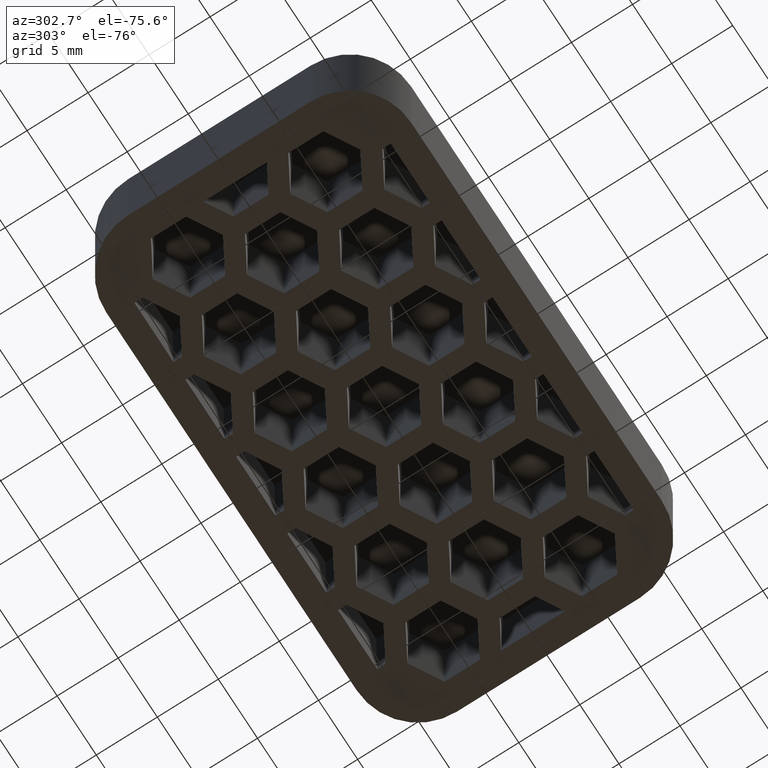
[diagram: clean part render]
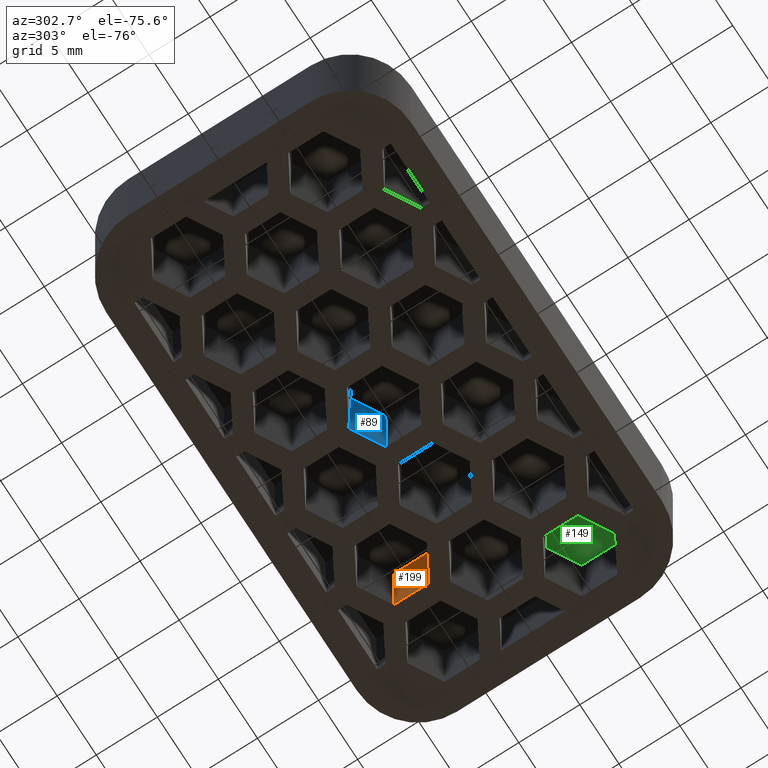
[diagram: same view with three faces highlighted in distinct colors, each labeled with its STEP entity id]
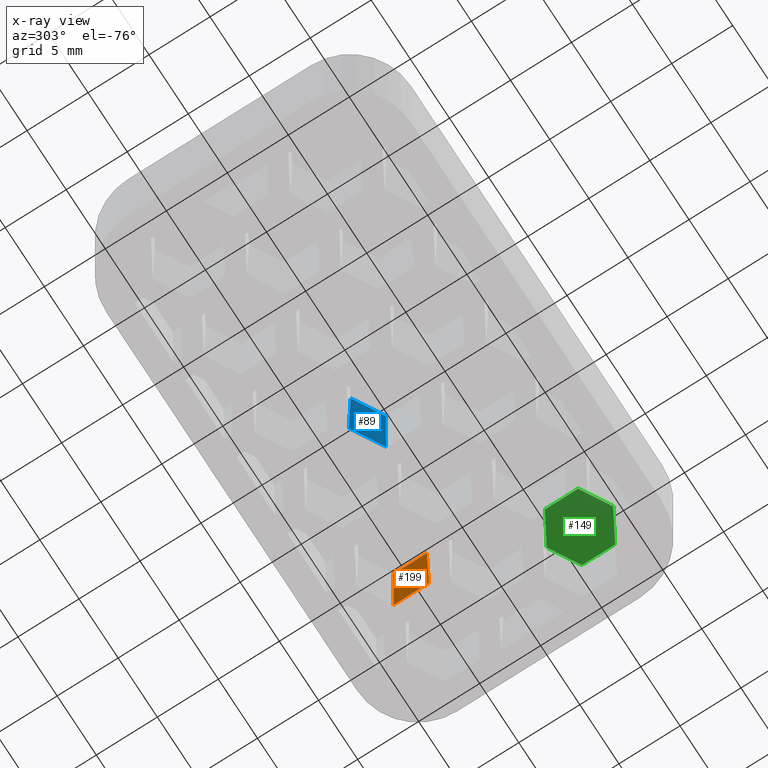
[diagram: x-ray of the same camera — body ghosted, the three highlighted faces saturated]
A machine part, auxiliary view with three faces highlighted in distinct colors.
The next image is the same camera in x-ray (body ghosted, the three faces saturated) — at least one of them is partly hidden behind the body in this view.
Their STEP definitions:

[orange] entity #199 — the highlighted planar face has unit normal (0.9998, -0, 0.0175).
#199 = ADVANCED_FACE( '', ( #596 ), #597, .F. );
#596 = FACE_OUTER_BOUND( '', #1106, .T. );
#597 = PLANE( '', #1107 );
#1106 = EDGE_LOOP( '', ( #2428, #2429, #2430, #2431 ) );
#1107 = AXIS2_PLACEMENT_3D( '', #2432, #2433, #2434 );
#2428 = ORIENTED_EDGE( '', *, *, #3306, .F. );
#2429 = ORIENTED_EDGE( '', *, *, #3637, .F. );
#2430 = ORIENTED_EDGE( '', *, *, #3638, .T. );
#2431 = ORIENTED_EDGE( '', *, *, #3639, .T. );
#2432 = CARTESIAN_POINT( '', ( 12.2500000000000, -1.44337567297407, -6.85051555290339E-015 ) );
#2433 = DIRECTION( '', ( 0.999847695156391, -4.98455653135830E-016, 0.0174524064372835 ) );
#2434 = DIRECTION( '', ( -0.0174524064372835, 6.12209920171588E-017, 0.999847695156391 ) );
#3306 = EDGE_CURVE( '', #3974, #3976, #3977, .F. );
#3637 = EDGE_CURVE( '', #4536, #3974, #4537, .T. );
#3638 = EDGE_CURVE( '', #4536, #4538, #4539, .F. );
#3639 = EDGE_CURVE( '', #4538, #3976, #4540, .T. );
#3974 = VERTEX_POINT( '', #5034 );
#3976 = VERTEX_POINT( '', #5037 );
#3977 = LINE( '', #5038, #5039 );
#4536 = VERTEX_POINT( '', #5925 );
#4537 = LINE( '', #5926, #5927 );
#4538 = VERTEX_POINT( '', #5928 );
#4539 = LINE( '', #5929, #5930 );
#4540 = LINE( '', #5931, #5932 );
#5034 = CARTESIAN_POINT( '', ( 12.2500000000000, 4.18578945162479, -7.19519112181835E-015 ) );
#5037 = CARTESIAN_POINT( '', ( 12.2500000000000, 7.07254079757292, -7.37194782382602E-015 ) );
#5038 = CARTESIAN_POINT( '', ( 12.2500000000000, 1.29903810567666, -7.01843441981068E-015 ) );
#5039 = VECTOR( '', #6468, 1000.00000000000 );
#5925 = CARTESIAN_POINT( '', ( 12.1103594805742, 4.26641094310502, 7.99999999999999 ) );
#5926 = CARTESIAN_POINT( '', ( 12.2509898056002, 4.18521798709509, -0.0567059248553564 ) );
#5927 = VECTOR( '', #6805, 1000.00000000000 );
#5928 = CARTESIAN_POINT( '', ( 12.1103594805742, 6.99191930609269, 7.99999999999999 ) );
#5929 = CARTESIAN_POINT( '', ( 12.1103594805742, 1.29903810567666, 7.99999999999999 ) );
#5930 = VECTOR( '', #6806, 1000.00000000000 );
#5931 = CARTESIAN_POINT( '', ( 12.2492639907076, 7.07211586240981, 0.0421659441231996 ) );
#5932 = VECTOR( '', #6807, 1000.00000000000 );
#6468 = DIRECTION( '', ( -4.99600361081321E-016, -1.00000000000000, 6.12303176911189E-017 ) );
#6805 = DIRECTION( '', ( 0.0174515205435363, -0.0100756400835790, -0.999796942337605 ) );
#6806 = DIRECTION( '', ( -4.99600361081321E-016, -1.00000000000000, 6.12303176911189E-017 ) );
#6807 = DIRECTION( '', ( 0.0174515205435363, 0.0100756400835789, -0.999796942337605 ) );

[blue] entity #89 — the highlighted planar face has unit normal (0.4999, 0.8659, 0.0175).
#89 = ADVANCED_FACE( '', ( #376 ), #377, .F. );
#376 = FACE_OUTER_BOUND( '', #886, .T. );
#377 = PLANE( '', #887 );
#886 = EDGE_LOOP( '', ( #1628, #1629, #1630, #1631 ) );
#887 = AXIS2_PLACEMENT_3D( '', #1632, #1633, #1634 );
#1628 = ORIENTED_EDGE( '', *, *, #3375, .T. );
#1629 = ORIENTED_EDGE( '', *, *, #3442, .F. );
#1630 = ORIENTED_EDGE( '', *, *, #3452, .F. );
#1631 = ORIENTED_EDGE( '', *, *, #3450, .T. );
#1632 = CARTESIAN_POINT( '', ( 3.74999999999998, 0.721687836487035, -6.98308307940915E-015 ) );
#1633 = DIRECTION( '', ( 0.499923847578195, 0.865893503920754, 0.0174524064372835 ) );
#1634 = DIRECTION( '', ( -0.866025403784439, 0.500000000000000, -3.06058338817720E-017 ) );
#3375 = EDGE_CURVE( '', #4113, #4110, #4114, .T. );
#3442 = EDGE_CURVE( '', #4243, #4110, #4245, .T. );
#3450 = EDGE_CURVE( '', #4256, #4113, #4257, .T. );
#3452 = EDGE_CURVE( '', #4256, #4243, #4259, .T. );
#4110 = VERTEX_POINT( '', #5236 );
#4113 = VERTEX_POINT( '', #5240 );
#4114 = LINE( '', #5241, #5242 );
#4243 = VERTEX_POINT( '', #5436 );
#4245 = LINE( '', #5439, #5440 );
#4256 = VERTEX_POINT( '', #5458 );
#4257 = LINE( '', #5459, #5460 );
#4259 = LINE( '', #5463, #5464 );
#5236 = CARTESIAN_POINT( '', ( 2.49999999999998, 1.44337567297407, -7.02727225491106E-015 ) );
#5240 = CARTESIAN_POINT( '', ( -1.64798730217797E-014, 2.88675134594813, -7.11565060591490E-015 ) );
#5241 = CARTESIAN_POINT( '', ( 3.74999999999998, 0.721687836487035, -6.98308307940915E-015 ) );
#5242 = VECTOR( '', #6543, 1000.00000000000 );
#5436 = CARTESIAN_POINT( '', ( 2.36035948057424, 1.36275418149384, 7.99999999999999 ) );
#5439 = CARTESIAN_POINT( '', ( 2.50025379630772, 1.44352220234066, -0.0145399807321493 ) );
#5440 = VECTOR( '', #6610, 1000.00000000000 );
#5458 = CARTESIAN_POINT( '', ( -1.66520656837769E-014, 2.72550836298767, 7.99999999999999 ) );
#5459 = CARTESIAN_POINT( '', ( -1.66966143636391E-014, 2.88675134594813, -7.11565060591490E-015 ) );
#5460 = VECTOR( '', #6618, 1000.00000000000 );
#5463 = CARTESIAN_POINT( '', ( 3.68017974028712, 0.600755599266690, 7.99999999999999 ) );
#5464 = VECTOR( '', #6620, 1000.00000000000 );
#6543 = DIRECTION( '', ( 0.866025403784439, -0.500000000000000, 3.06151588455594E-017 ) );
#6610 = DIRECTION( '', ( 0.0174515205435363, 0.0100756400835789, -0.999796942337605 ) );
#6618 = DIRECTION( '', ( -3.00523943436880E-018, 0.0201512801671579, -0.999796942337605 ) );
#6620 = DIRECTION( '', ( 0.866025403784439, -0.500000000000000, 3.06151588455594E-017 ) );

[green] entity #149 — the highlighted planar face has unit normal (-0, 0, 1).
#149 = ADVANCED_FACE( '', ( #496 ), #497, .F. );
#496 = FACE_OUTER_BOUND( '', #1006, .T. );
#497 = PLANE( '', #1007 );
#1006 = EDGE_LOOP( '', ( #2062, #2063, #2064, #2065, #2066, #2067 ) );
#1007 = AXIS2_PLACEMENT_3D( '', #2068, #2069, #2070 );
#2062 = ORIENTED_EDGE( '', *, *, #3542, .T. );
#2063 = ORIENTED_EDGE( '', *, *, #3545, .T. );
#2064 = ORIENTED_EDGE( '', *, *, #3547, .T. );
#2065 = ORIENTED_EDGE( '', *, *, #3549, .T. );
#2066 = ORIENTED_EDGE( '', *, *, #3551, .T. );
#2067 = ORIENTED_EDGE( '', *, *, #3552, .T. );
#2068 = CARTESIAN_POINT( '', ( 18.7500000000000, -1.29903810567666, 7.99999999999999 ) );
#2069 = DIRECTION( '', ( -3.23117426778526E-033, 6.12303176911189E-017, 1.00000000000000 ) );
#2070 = DIRECTION( '', ( -0.500000000000000, 0.866025403784439, -5.30270106023007E-017 ) );
#3542 = EDGE_CURVE( '', #4394, #4392, #4395, .T. );
#3545 = EDGE_CURVE( '', #4392, #4397, #4399, .T. );
#3547 = EDGE_CURVE( '', #4397, #4400, #4402, .T. );
#3549 = EDGE_CURVE( '', #4400, #4403, #4405, .T. );
#3551 = EDGE_CURVE( '', #4403, #4406, #4408, .T. );
#3552 = EDGE_CURVE( '', #4406, #4394, #4409, .T. );
#4392 = VERTEX_POINT( '', #5685 );
#4394 = VERTEX_POINT( '', #5688 );
#4395 = LINE( '', #5689, #5690 );
#4397 = VERTEX_POINT( '', #5693 );
#4399 = LINE( '', #5696, #5697 );
#4400 = VERTEX_POINT( '', #5698 );
#4402 = LINE( '', #5701, #5702 );
#4403 = VERTEX_POINT( '', #5703 );
#4405 = LINE( '', #5706, #5707 );
#4406 = VERTEX_POINT( '', #5708 );
#4408 = LINE( '', #5711, #5712 );
#4409 = LINE( '', #5713, #5714 );
#5685 = CARTESIAN_POINT( '', ( 18.6103594805742, -6.99191930609269, 7.99999999999999 ) );
#5688 = CARTESIAN_POINT( '', ( 18.6103594805742, -4.26641094310501, 7.99999999999999 ) );
#5689 = CARTESIAN_POINT( '', ( 18.6103594805742, -1.44337567297405, 7.99999999999999 ) );
#5690 = VECTOR( '', #6710, 1000.00000000000 );
#5693 = CARTESIAN_POINT( '', ( 16.2500000000000, -8.35467348758652, 7.99999999999999 ) );
#5696 = CARTESIAN_POINT( '', ( 8.93017974028712, -12.5807736849514, 7.99999999999999 ) );
#5697 = VECTOR( '', #6713, 1000.00000000000 );
#5698 = CARTESIAN_POINT( '', ( 13.8896405194257, -6.99191930609268, 7.99999999999999 ) );
#5701 = CARTESIAN_POINT( '', ( 2.94482025971286, -0.672924382915387, 7.99999999999999 ) );
#5702 = VECTOR( '', #6715, 1000.00000000000 );
#5703 = CARTESIAN_POINT( '', ( 13.8896405194257, -4.26641094310502, 7.99999999999999 ) );
#5706 = CARTESIAN_POINT( '', ( 13.8896405194257, -1.44337567297406, 7.99999999999999 ) );
#5707 = VECTOR( '', #6717, 1000.00000000000 );
#5708 = CARTESIAN_POINT( '', ( 16.2500000000000, -2.90365676161118, 7.99999999999999 ) );
#5711 = CARTESIAN_POINT( '', ( 6.56982025971285, -8.49251114046992, 7.99999999999999 ) );
#5712 = VECTOR( '', #6719, 1000.00000000000 );
#5713 = CARTESIAN_POINT( '', ( 5.30517974028711, 3.41533816156611, 7.99999999999999 ) );
#5714 = VECTOR( '', #6720, 1000.00000000000 );
#6710 = DIRECTION( '', ( 6.66133814775094E-016, -1.00000000000000, 6.12303176911189E-017 ) );
#6713 = DIRECTION( '', ( -0.866025403784438, -0.500000000000000, 3.06151588455594E-017 ) );
#6715 = DIRECTION( '', ( -0.866025403784439, 0.500000000000000, -3.06151588455594E-017 ) );
#6717 = DIRECTION( '', ( 5.55111512312578E-017, 1.00000000000000, -6.12303176911189E-017 ) );
#6719 = DIRECTION( '', ( 0.866025403784439, 0.500000000000000, -3.06151588455594E-017 ) );
#6720 = DIRECTION( '', ( 0.866025403784439, -0.500000000000000, 3.06151588455594E-017 ) );